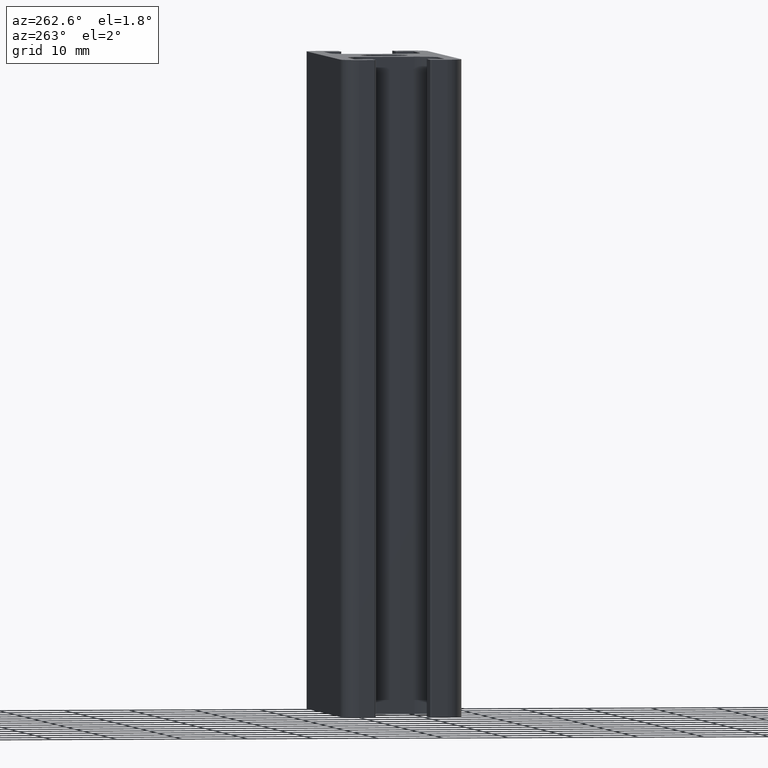
[diagram: clean part render]
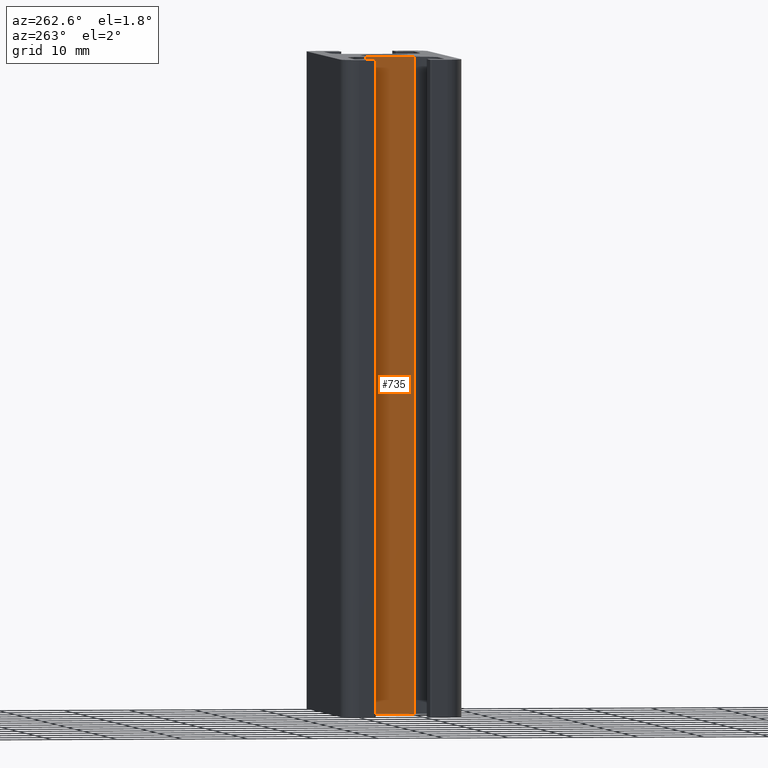
[diagram: same view with one face highlighted and labeled with its STEP entity id]
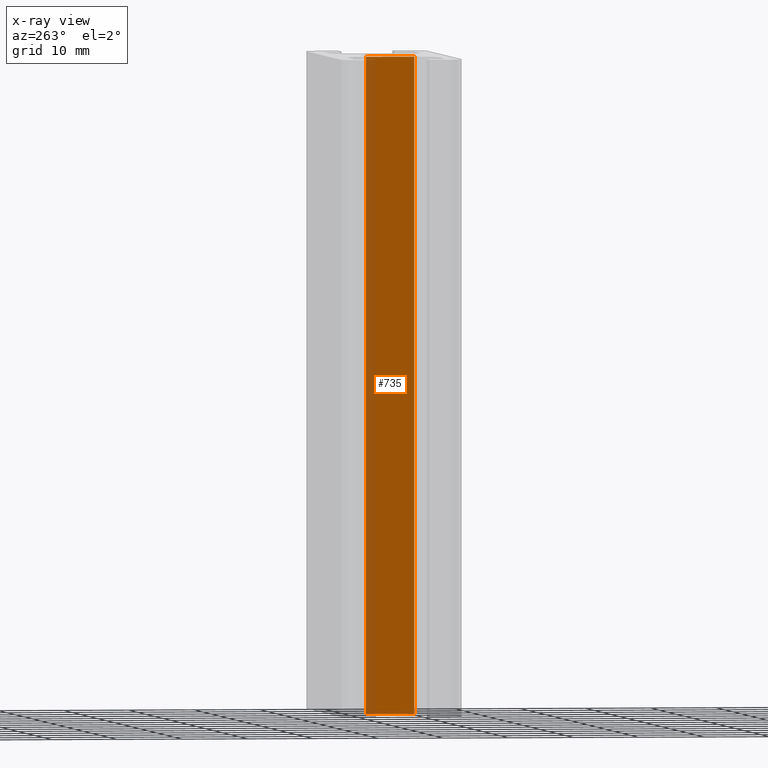
[diagram: x-ray of the same camera — body ghosted, the highlighted face saturated]
A machine part, auxiliary view. The second image highlights one B-rep face of the part: STEP entity #735.
The next image is the same camera in x-ray: the body ghosted, the highlighted face saturated — about 21% of this face is hidden behind the body in this view.
In plain terms, the highlighted planar face has unit normal (1, -0, 0).
Its self-contained STEP definition (entity closure, byte-faithful):
#18=PLANE('',#784);
#49=LINE('',#1110,#125);
#50=LINE('',#1113,#126);
#51=LINE('',#1115,#127);
#52=LINE('',#1116,#128);
#125=VECTOR('',#886,100.);
#126=VECTOR('',#889,7.4);
#127=VECTOR('',#890,7.4);
#128=VECTOR('',#891,100.);
#199=FACE_OUTER_BOUND('',#239,.T.);
#239=EDGE_LOOP('',(#517,#518,#519,#520));
#321=VERTEX_POINT('',#1106);
#322=VERTEX_POINT('',#1108);
#323=VERTEX_POINT('',#1112);
#324=VERTEX_POINT('',#1114);
#401=EDGE_CURVE('',#322,#321,#49,.T.);
#402=EDGE_CURVE('',#321,#323,#50,.T.);
#403=EDGE_CURVE('',#324,#322,#51,.T.);
#404=EDGE_CURVE('',#324,#323,#52,.T.);
#517=ORIENTED_EDGE('',*,*,#402,.F.);
#518=ORIENTED_EDGE('',*,*,#401,.F.);
#519=ORIENTED_EDGE('',*,*,#403,.F.);
#520=ORIENTED_EDGE('',*,*,#404,.T.);
#735=ADVANCED_FACE('',(#199),#18,.F.);
#784=AXIS2_PLACEMENT_3D('',#1111,#887,#888);
#886=DIRECTION('',(0.,0.,1.));
#887=DIRECTION('center_axis',(1.,-1.72549662246134E-12,0.));
#888=DIRECTION('ref_axis',(0.,0.,-1.));
#889=DIRECTION('',(-1.72549662246134E-12,-1.,0.));
#890=DIRECTION('',(1.72549662246134E-12,1.,0.));
#891=DIRECTION('',(0.,0.,1.));
#1106=CARTESIAN_POINT('',(-7.2,3.7,100.));
#1108=CARTESIAN_POINT('',(-7.2,3.7,0.));
#1110=CARTESIAN_POINT('',(-7.2,3.7,0.));
#1111=CARTESIAN_POINT('Origin',(-7.2,3.7,0.));
#1112=CARTESIAN_POINT('',(-7.20000000001277,-3.7,100.));
#1113=CARTESIAN_POINT('',(-7.20000000000319,1.85000000000621,100.));
#1114=CARTESIAN_POINT('',(-7.20000000001277,-3.7,0.));
#1115=CARTESIAN_POINT('',(-7.20000000000319,1.85000000000621,0.));
#1116=CARTESIAN_POINT('',(-7.20000000001277,-3.7,0.));